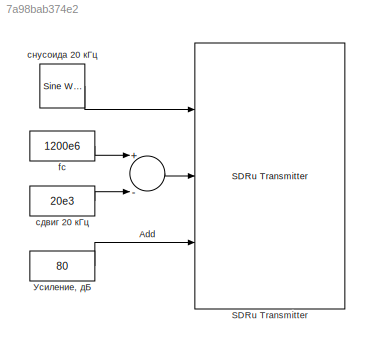
MODEL slx_7a98bab374e2
KIND model
CONFIG AbsTol = auto
CONFIG EnableMultiTasking = off
CONFIG FixedStep = auto
CONFIG MaxStep = auto
CONFIG MinStep = auto
CONFIG RelTol = 1e-3
CONFIG SampleTimeConstraint = Unconstrained
CONFIG Solver = VariableStepAuto
CONFIG SolverName = VariableStepAuto
CONFIG StartTime = 0.0
CONFIG StopTime = inf
BLOCK [Sum] Add
  InputSameDT = off
  Inputs = +-
  OutDataTypeStr = Inherit: Inherit via internal rule
  Ports = [2, 1]
  SaturateOnIntegerOverflow = off
BLOCK [Reference] SDRu Transmitter  REF=commsdrhw_v2/SDRu Transmitter
  Ports = [3]
  SourceBlock = commsdrhw_v2/SDRu Transmitter
  SourceProductBaseCode = USRP
  SourceProductName = Communications System Toolbox Support Package for USRP(R) Radio
  SourceType = SDRu Transmitter
BLOCK [Constant] fc
  Value = 1200e6
BLOCK [Constant] Усиление, дБ
  Value = 80
BLOCK [Constant] сдвиг 20 кГц
  Value = 20e3
BLOCK [Reference] снусоида 20 кГц  REF=dspsrcs4/Sine Wave
  Ports = [0, 1]
  SourceBlock = dspsrcs4/Sine Wave
  SourceProductBaseCode = DS
  SourceProductName = DSP System Toolbox
  SourceType = Sine Wave
LINE Add:1 -> SDRu Transmitter:2
LINE fc:1 -> Add:1
LINE Усиление, дБ:1 -> SDRu Transmitter:3
LINE сдвиг 20 кГц:1 -> Add:2
LINE снусоида 20 кГц:1 -> SDRu Transmitter:1
